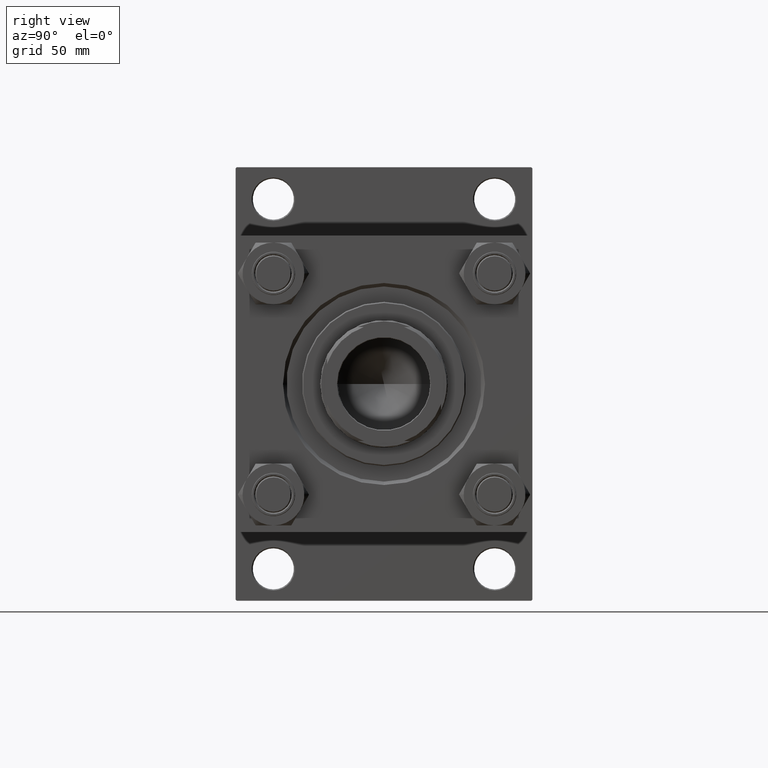
[diagram: clean part render]
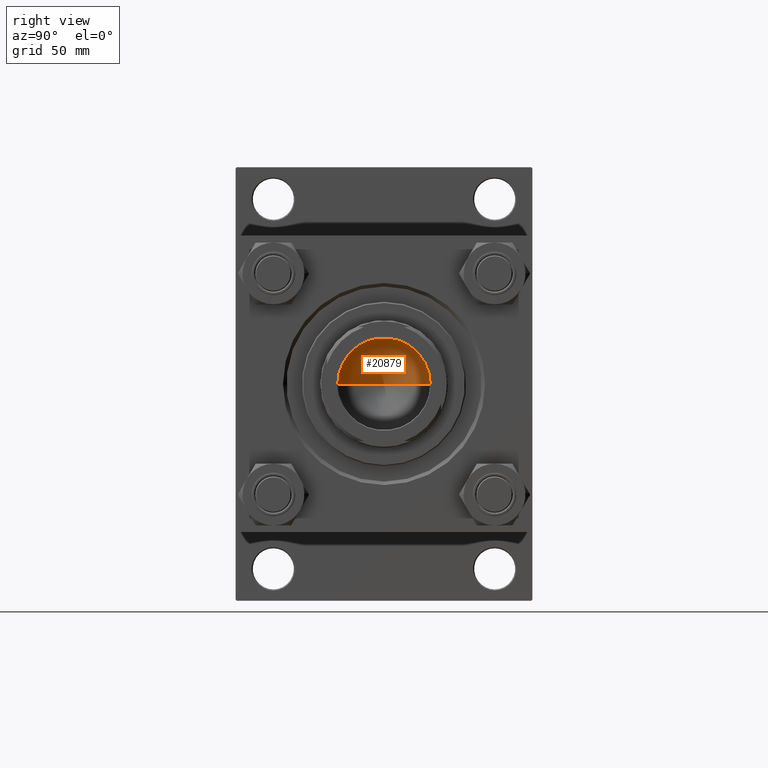
[diagram: same view with one face highlighted and labeled with its STEP entity id]
A machine part, right view. The second image highlights one B-rep face of the part: STEP entity #20879.
In plain terms, the highlighted conical surface has half-angle 59 deg.
Its self-contained STEP definition (entity closure, byte-faithful):
#1878 = ORIENTED_EDGE ( 'NONE', *, *, #29808, .T. ) ;
#3139 = EDGE_CURVE ( 'NONE', #45977, #47386, #21429, .T. ) ;
#4855 = VECTOR ( 'NONE', #34566, 1000.000000000000000 ) ;
#10713 = FACE_OUTER_BOUND ( 'NONE', #26956, .T. ) ;
#10829 = LINE ( 'NONE', #26892, #4855 ) ;
#13546 = ORIENTED_EDGE ( 'NONE', *, *, #3139, .T. ) ;
#15658 = DIRECTION ( 'NONE',  ( -0.000000000000000000, -0.000000000000000000, 1.000000000000000000 ) ) ;
#17870 = CARTESIAN_POINT ( 'NONE',  ( 0.000000000000000000, 0.000000000000000000, 117.0000000000000142 ) ) ;
#18009 = ORIENTED_EDGE ( 'NONE', *, *, #45985, .F. ) ;
#18260 = AXIS2_PLACEMENT_3D ( 'NONE', #35319, #15658, #23562 ) ;
#18353 = CARTESIAN_POINT ( 'NONE',  ( -20.24999999999998934, 2.479909768273389117E-15, 117.0000000000000142 ) ) ;
#18982 = CARTESIAN_POINT ( 'NONE',  ( -1.584115414415908206E-14, 0.000000000000000000, 104.8325724646918928 ) ) ;
#20120 = CONICAL_SURFACE ( 'NONE', #48664, 20.24999999999998934, 1.029744258676652979 ) ;
#20879 = ADVANCED_FACE ( 'NONE', ( #10713 ), #20120, .F. ) ;
#21179 = DIRECTION ( 'NONE',  ( -0.8571673007021115565, 1.049727191138617710E-16, 0.5150380749100554878 ) ) ;
#21429 = LINE ( 'NONE', #18353, #30241 ) ;
#21464 = VERTEX_POINT ( 'NONE', #27867 ) ;
#23562 = DIRECTION ( 'NONE',  ( 1.000000000000000000, 0.000000000000000000, 0.000000000000000000 ) ) ;
#26271 = DIRECTION ( 'NONE',  ( -0.000000000000000000, -0.000000000000000000, 1.000000000000000000 ) ) ;
#26892 = CARTESIAN_POINT ( 'NONE',  ( 20.24999999999998934, 0.000000000000000000, 117.0000000000000142 ) ) ;
#26956 = EDGE_LOOP ( 'NONE', ( #18009, #13546, #1878 ) ) ;
#27223 = CIRCLE ( 'NONE', #18260, 20.24999999999998934 ) ;
#27867 = CARTESIAN_POINT ( 'NONE',  ( 20.24999999999998934, 0.000000000000000000, 117.0000000000000142 ) ) ;
#29808 = EDGE_CURVE ( 'NONE', #47386, #21464, #27223, .T. ) ;
#30241 = VECTOR ( 'NONE', #21179, 1000.000000000000000 ) ;
#33694 = CARTESIAN_POINT ( 'NONE',  ( -20.24999999999998934, 2.479909768273389117E-15, 117.0000000000000142 ) ) ;
#34566 = DIRECTION ( 'NONE',  ( 0.8571673007021115565, 0.000000000000000000, 0.5150380749100554878 ) ) ;
#35319 = CARTESIAN_POINT ( 'NONE',  ( 0.000000000000000000, 0.000000000000000000, 117.0000000000000142 ) ) ;
#41864 = DIRECTION ( 'NONE',  ( 1.000000000000000000, 0.000000000000000000, 0.000000000000000000 ) ) ;
#45977 = VERTEX_POINT ( 'NONE', #18982 ) ;
#45985 = EDGE_CURVE ( 'NONE', #45977, #21464, #10829, .T. ) ;
#47386 = VERTEX_POINT ( 'NONE', #33694 ) ;
#48664 = AXIS2_PLACEMENT_3D ( 'NONE', #17870, #26271, #41864 ) ;